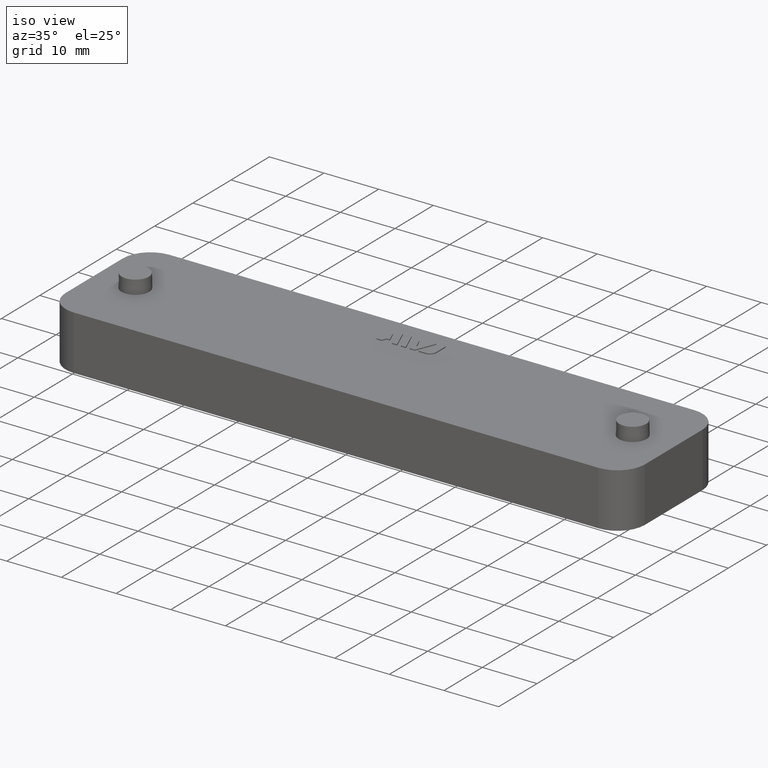
[diagram: clean part render]
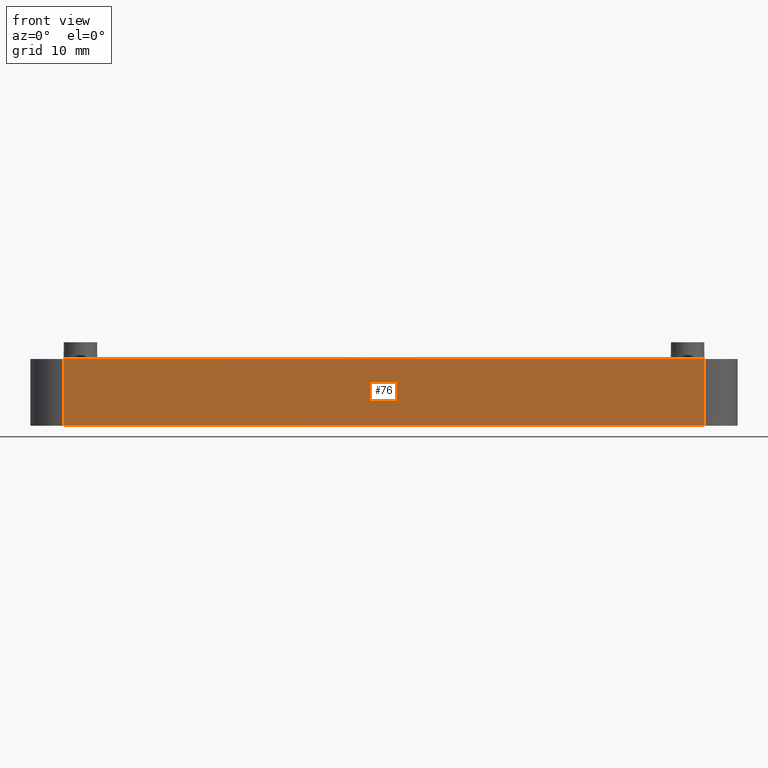
[diagram: tour spotlight — one face highlighted and labeled with its STEP entity id]
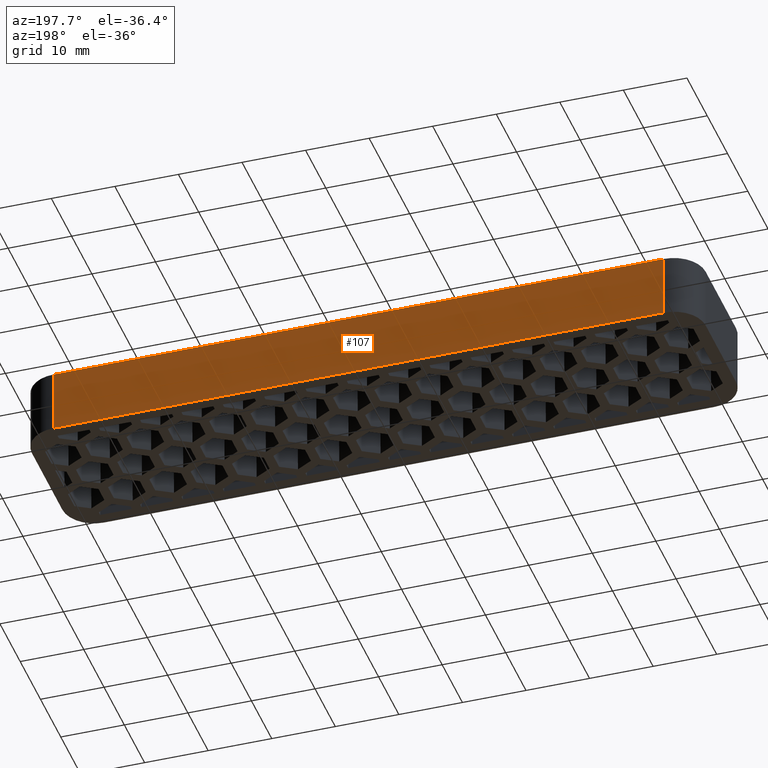
[diagram: tour spotlight — one face highlighted and labeled with its STEP entity id]
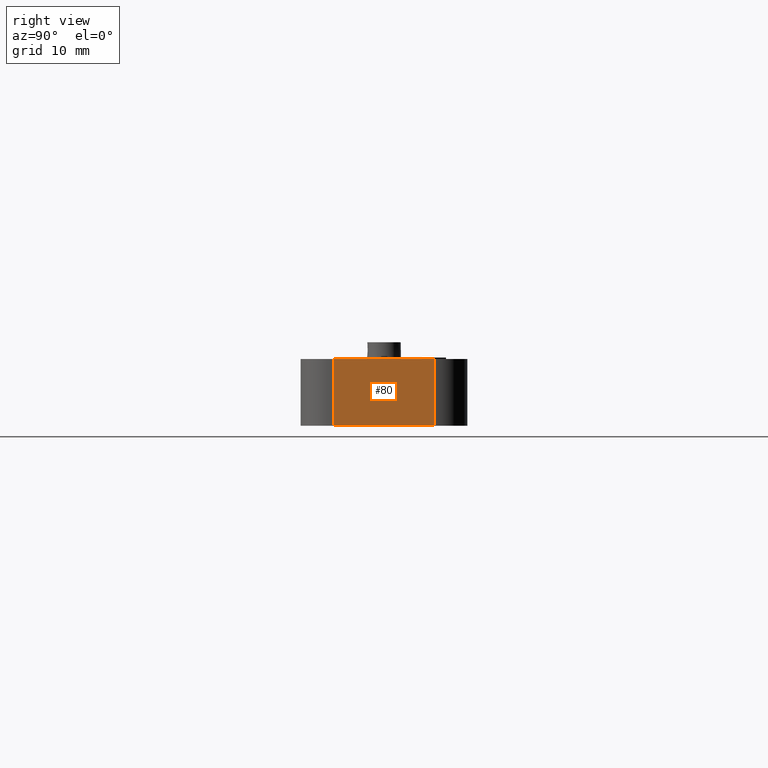
[diagram: tour spotlight — one face highlighted and labeled with its STEP entity id]
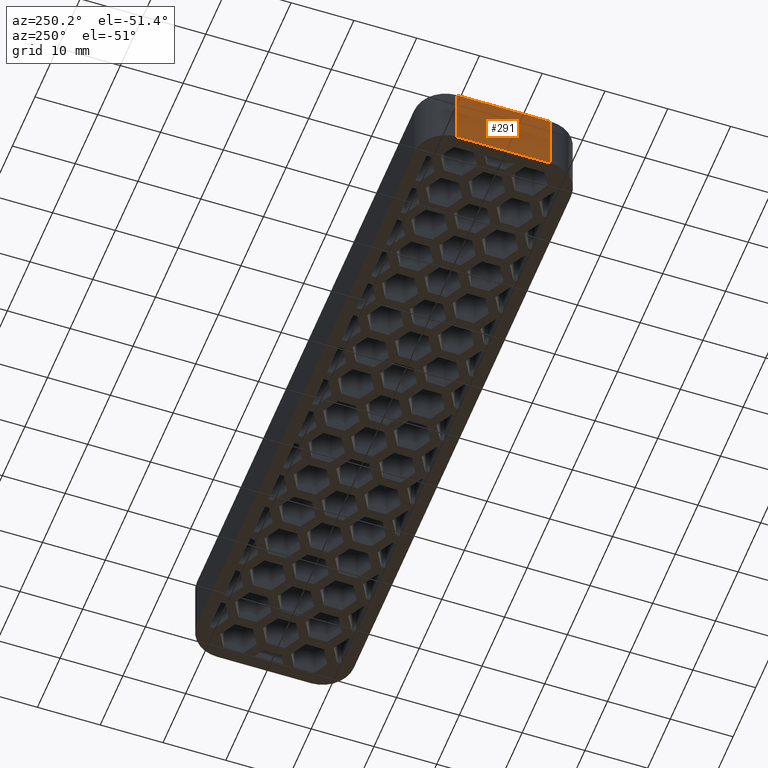
[diagram: tour spotlight — one face highlighted and labeled with its STEP entity id]
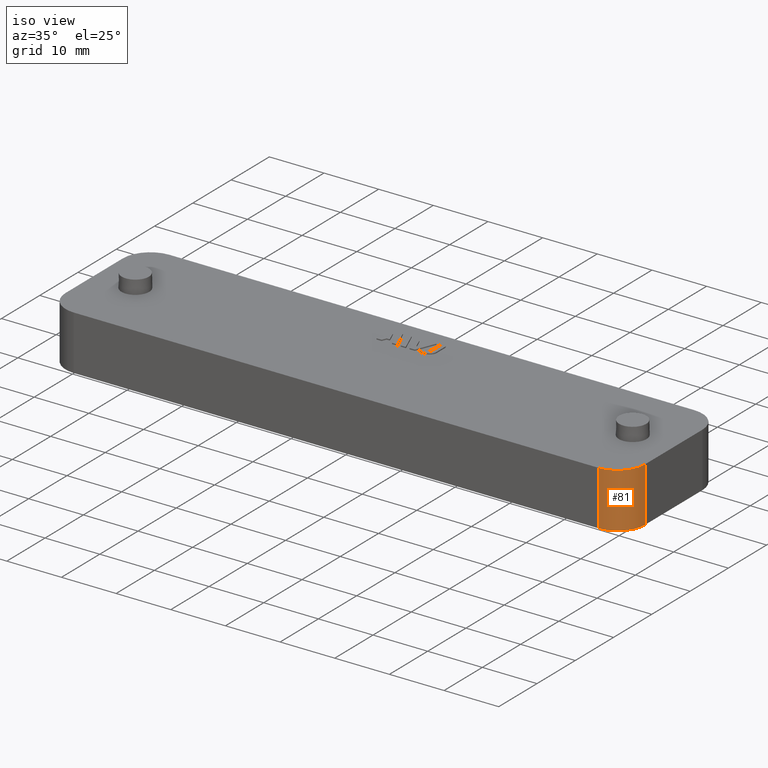
[diagram: tour spotlight — one face highlighted and labeled with its STEP entity id]
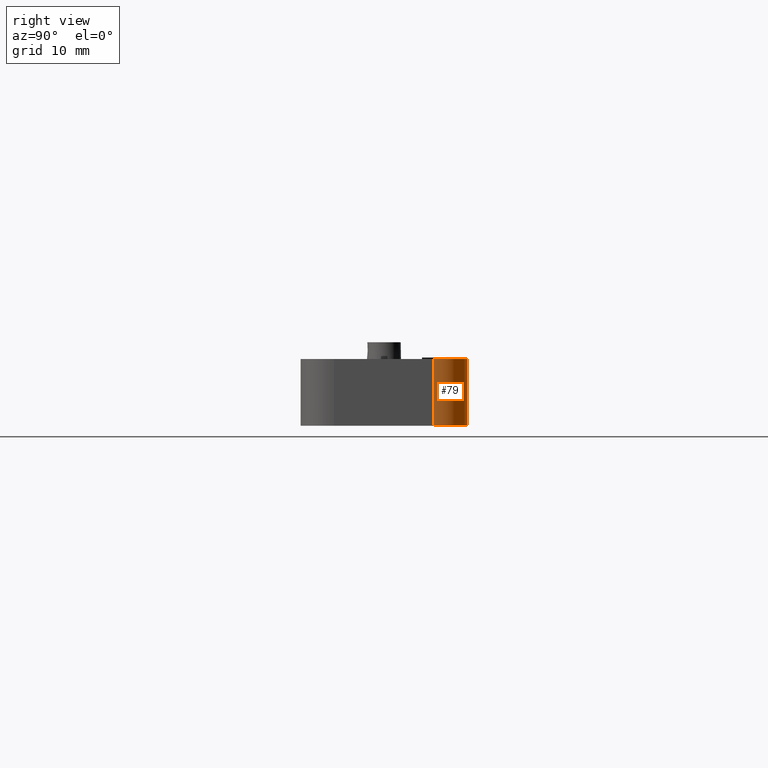
[diagram: tour spotlight — one face highlighted and labeled with its STEP entity id]
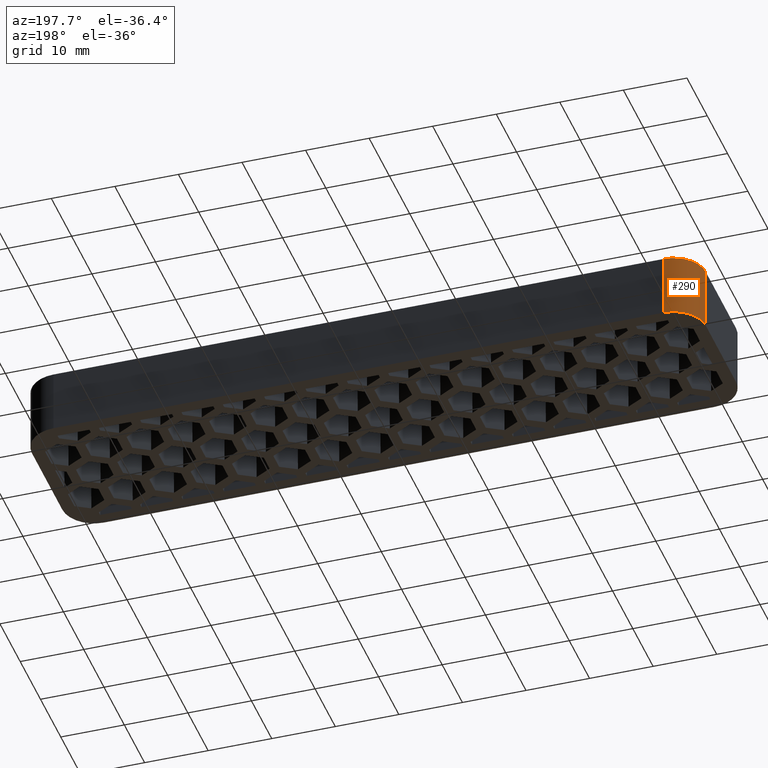
[diagram: tour spotlight — one face highlighted and labeled with its STEP entity id]
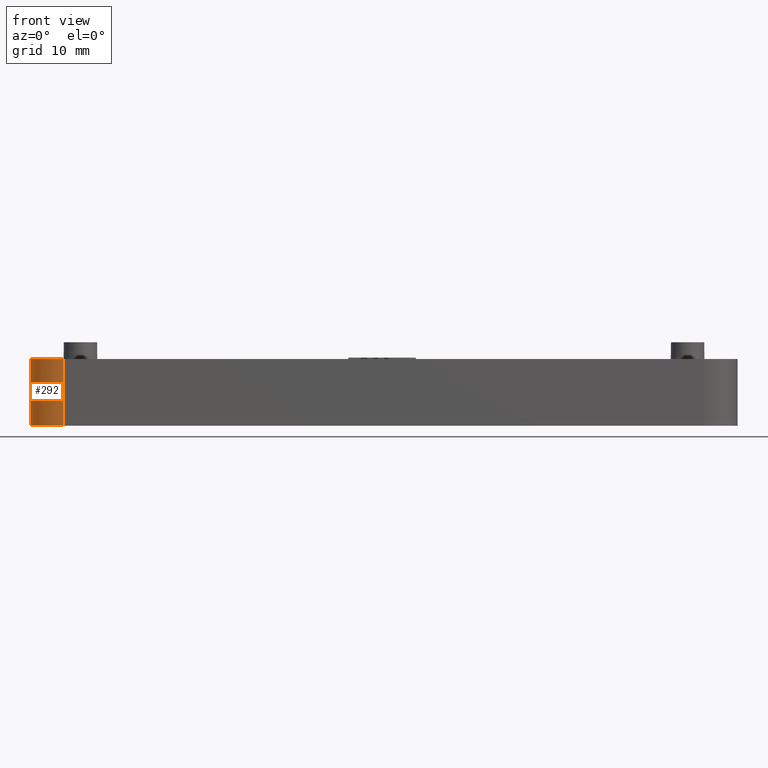
[diagram: tour spotlight — one face highlighted and labeled with its STEP entity id]
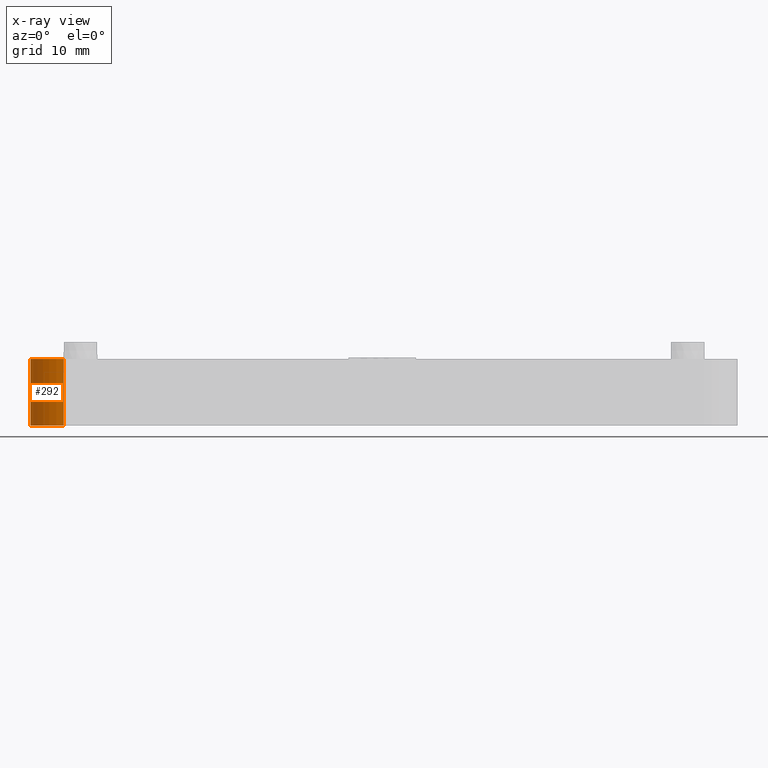
[diagram: x-ray of the same camera — body ghosted, this tour face saturated]
A machine part: a face-by-face anatomy tour. The part has 566 B-rep faces; the first image is the clean iso view, then the 8 largest visible faces are spotlighted one at a time (largest first), each with its STEP entity span.

Face 1 — front view, entity #76. In plain terms, the highlighted planar face has unit normal (0, 1, -0).
Definition (entity closure, byte-faithful):
#76 = ADVANCED_FACE( '', ( #651 ), #652, .F. );
#651 = FACE_OUTER_BOUND( '', #1871, .T. );
#652 = PLANE( '', #1872 );
#1871 = EDGE_LOOP( '', ( #3123, #3124, #3125, #3126 ) );
#1872 = AXIS2_PLACEMENT_3D( '', #3127, #3128, #3129 );
#3123 = ORIENTED_EDGE( '', *, *, #7682, .F. );
#3124 = ORIENTED_EDGE( '', *, *, #7683, .T. );
#3125 = ORIENTED_EDGE( '', *, *, #7662, .T. );
#3126 = ORIENTED_EDGE( '', *, *, #7684, .T. );
#3127 = CARTESIAN_POINT( '', ( 65.5000000000001, -12.5000000000000, -1.31124088366755E-014 ) );
#3128 = DIRECTION( '', ( 0.000000000000000, 1.00000000000000, -6.12303176911189E-017 ) );
#3129 = DIRECTION( '', ( 1.00000000000000, 0.000000000000000, 0.000000000000000 ) );
#7662 = EDGE_CURVE( '', #9099, #9111, #9113, .T. );
#7682 = EDGE_CURVE( '', #9152, #9153, #9154, .T. );
#7683 = EDGE_CURVE( '', #9152, #9099, #9155, .T. );
#7684 = EDGE_CURVE( '', #9111, #9153, #9156, .T. );
#9099 = VERTEX_POINT( '', #11498 );
#9111 = VERTEX_POINT( '', #11513 );
#9113 = LINE( '', #11515, #11516 );
#9152 = VERTEX_POINT( '', #11570 );
#9153 = VERTEX_POINT( '', #11571 );
#9154 = LINE( '', #11572, #11573 );
#9155 = LINE( '', #11574, #11575 );
#9156 = LINE( '', #11576, #11577 );
#11498 = CARTESIAN_POINT( '', ( 48.0000000000000, -12.5000000000000, 9.99999999999998 ) );
#11513 = CARTESIAN_POINT( '', ( -48.0000000000000, -12.5000000000000, 9.99999999999998 ) );
#11515 = CARTESIAN_POINT( '', ( 65.5000000000001, -12.5000000000000, 9.99999999999998 ) );
#11516 = VECTOR( '', #15294, 1000.00000000000 );
#11570 = CARTESIAN_POINT( '', ( 48.0000000000000, -12.5000000000000, -6.86235600679333E-014 ) );
#11571 = CARTESIAN_POINT( '', ( -48.0000000000000, -12.5000000000000, -1.31124088366755E-014 ) );
#11572 = CARTESIAN_POINT( '', ( 65.5000000000001, -12.5000000000000, -1.31124088366755E-014 ) );
#11573 = VECTOR( '', #15322, 1000.00000000000 );
#11574 = CARTESIAN_POINT( '', ( 48.0000000000000, -12.5000000000000, -89.5929851200561 ) );
#11575 = VECTOR( '', #15323, 1000.00000000000 );
#11576 = CARTESIAN_POINT( '', ( -48.0000000000000, -12.4999999999999, 115.587533297270 ) );
#11577 = VECTOR( '', #15324, 1000.00000000000 );
#15294 = DIRECTION( '', ( -1.00000000000000, 0.000000000000000, 0.000000000000000 ) );
#15322 = DIRECTION( '', ( -1.00000000000000, 0.000000000000000, 0.000000000000000 ) );
#15323 = DIRECTION( '', ( 1.60751816480225E-016, 1.81794180051289E-016, 1.00000000000000 ) );
#15324 = DIRECTION( '', ( 1.60751816480226E-016, -1.81794180051289E-016, -1.00000000000000 ) );

Face 2 — auxiliary view, entity #107. In plain terms, the highlighted planar face has unit normal (0, -1, 0).
Definition (entity closure, byte-faithful):
#107 = ADVANCED_FACE( '', ( #792 ), #793, .F. );
#792 = FACE_OUTER_BOUND( '', #2012, .T. );
#793 = PLANE( '', #2013 );
#2012 = EDGE_LOOP( '', ( #3792, #3793, #3794, #3795 ) );
#2013 = AXIS2_PLACEMENT_3D( '', #3796, #3797, #3798 );
#3792 = ORIENTED_EDGE( '', *, *, #7691, .F. );
#3793 = ORIENTED_EDGE( '', *, *, #8139, .F. );
#3794 = ORIENTED_EDGE( '', *, *, #8196, .F. );
#3795 = ORIENTED_EDGE( '', *, *, #7658, .T. );
#3796 = CARTESIAN_POINT( '', ( -65.4999999999999, 12.5000000000000, -1.46431667789534E-014 ) );
#3797 = DIRECTION( '', ( 2.46519032881566E-032, -1.00000000000000, 6.12303176911189E-017 ) );
#3798 = DIRECTION( '', ( -1.00000000000000, -2.46519032881566E-032, 1.50944387002457E-048 ) );
#7658 = EDGE_CURVE( '', #9105, #9103, #9106, .T. );
#7691 = EDGE_CURVE( '', #9165, #9103, #9168, .T. );
#8139 = EDGE_CURVE( '', #10058, #9165, #10060, .T. );
#8196 = EDGE_CURVE( '', #9105, #10058, #10150, .T. );
#9103 = VERTEX_POINT( '', #11503 );
#9105 = VERTEX_POINT( '', #11505 );
#9106 = LINE( '', #11506, #11507 );
#9165 = VERTEX_POINT( '', #11591 );
#9168 = LINE( '', #11594, #11595 );
#10058 = VERTEX_POINT( '', #12929 );
#10060 = LINE( '', #12931, #12932 );
#10150 = LINE( '', #13076, #13077 );
#11503 = CARTESIAN_POINT( '', ( 48.0000000000000, 12.5000000000000, 9.99999999999995 ) );
#11505 = CARTESIAN_POINT( '', ( -48.0000000000000, 12.5000000000000, 9.99999999999998 ) );
#11506 = CARTESIAN_POINT( '', ( -65.4999999999999, 12.5000000000000, 9.99999999999998 ) );
#11507 = VECTOR( '', #15286, 1000.00000000000 );
#11591 = CARTESIAN_POINT( '', ( 48.0000000000000, 12.5000000000000, -4.23987423945824E-014 ) );
#11594 = CARTESIAN_POINT( '', ( 48.0000000000000, 12.5000000000000, -89.5929851200561 ) );
#11595 = VECTOR( '', #15333, 1000.00000000000 );
#12929 = CARTESIAN_POINT( '', ( -48.0000000000000, 12.5000000000000, -1.46431667789534E-014 ) );
#12931 = CARTESIAN_POINT( '', ( -65.4999999999999, 12.5000000000000, -1.46431667789534E-014 ) );
#12932 = VECTOR( '', #15787, 1000.00000000000 );
#13076 = CARTESIAN_POINT( '', ( -48.0000000000000, 12.5000000000000, 115.587533297270 ) );
#13077 = VECTOR( '', #15848, 1000.00000000000 );
#15286 = DIRECTION( '', ( 1.00000000000000, 2.46519032881566E-032, -1.50944387002457E-048 ) );
#15333 = DIRECTION( '', ( 1.60751816480225E-016, 1.81794180051289E-016, 1.00000000000000 ) );
#15787 = DIRECTION( '', ( 1.00000000000000, 2.46519032881566E-032, -1.50944387002457E-048 ) );
#15848 = DIRECTION( '', ( 1.60751816480226E-016, -1.81794180051289E-016, -1.00000000000000 ) );

Face 3 — right view, entity #80. In plain terms, the highlighted planar face has unit normal (1, 0, -0).
Definition (entity closure, byte-faithful):
#80 = ADVANCED_FACE( '', ( #659 ), #660, .T. );
#659 = FACE_OUTER_BOUND( '', #1879, .T. );
#660 = PLANE( '', #1880 );
#1879 = EDGE_LOOP( '', ( #3151, #3152, #3153, #3154 ) );
#1880 = AXIS2_PLACEMENT_3D( '', #3155, #3156, #3157 );
#3151 = ORIENTED_EDGE( '', *, *, #7693, .F. );
#3152 = ORIENTED_EDGE( '', *, *, #7692, .T. );
#3153 = ORIENTED_EDGE( '', *, *, #7656, .T. );
#3154 = ORIENTED_EDGE( '', *, *, #7694, .F. );
#3155 = CARTESIAN_POINT( '', ( 53.0000000000000, -7.50000000000000, -89.5929851200561 ) );
#3156 = DIRECTION( '', ( 1.00000000000000, 7.79018020428502E-031, -1.60751816480225E-016 ) );
#3157 = DIRECTION( '', ( -8.08241765097280E-031, 1.00000000000000, -1.81794180051289E-016 ) );
#7656 = EDGE_CURVE( '', #9101, #9098, #9102, .T. );
#7692 = EDGE_CURVE( '', #9166, #9101, #9169, .T. );
#7693 = EDGE_CURVE( '', #9166, #9170, #9171, .T. );
#7694 = EDGE_CURVE( '', #9170, #9098, #9172, .T. );
#9098 = VERTEX_POINT( '', #11497 );
#9101 = VERTEX_POINT( '', #11500 );
#9102 = LINE( '', #11501, #11502 );
#9166 = VERTEX_POINT( '', #11592 );
#9169 = LINE( '', #11596, #11597 );
#9170 = VERTEX_POINT( '', #11598 );
#9171 = LINE( '', #11599, #11600 );
#9172 = LINE( '', #11601, #11602 );
#11497 = CARTESIAN_POINT( '', ( 53.0000000000000, -7.49999999999999, 9.99999999999995 ) );
#11500 = CARTESIAN_POINT( '', ( 53.0000000000000, 7.50000000000002, 9.99999999999995 ) );
#11501 = CARTESIAN_POINT( '', ( 53.0000000000000, -7.75475603870267E-016, 9.99999999999998 ) );
#11502 = VECTOR( '', #15282, 1000.00000000000 );
#11592 = CARTESIAN_POINT( '', ( 53.0000000000000, 7.50000000000002, -5.59703786139412E-014 ) );
#11596 = CARTESIAN_POINT( '', ( 53.0000000000000, 7.50000000000000, -89.5929851200561 ) );
#11597 = VECTOR( '', #15334, 1000.00000000000 );
#11598 = CARTESIAN_POINT( '', ( 53.0000000000000, -7.50000000000000, -4.11741360407600E-014 ) );
#11599 = CARTESIAN_POINT( '', ( 53.0000000000000, -1.38777878078146E-015, -1.38777878078145E-014 ) );
#11600 = VECTOR( '', #15335, 1000.00000000000 );
#11601 = CARTESIAN_POINT( '', ( 53.0000000000000, -7.50000000000001, -89.5929851200561 ) );
#11602 = VECTOR( '', #15336, 1000.00000000000 );
#15282 = DIRECTION( '', ( 7.88860905221012E-031, -1.00000000000000, 6.12303176911189E-017 ) );
#15334 = DIRECTION( '', ( 1.60751816480225E-016, 1.81794180051289E-016, 1.00000000000000 ) );
#15335 = DIRECTION( '', ( 7.88860905221012E-031, -1.00000000000000, 6.12303176911189E-017 ) );
#15336 = DIRECTION( '', ( 1.60751816480225E-016, 1.81794180051289E-016, 1.00000000000000 ) );

Face 4 — auxiliary view, entity #291. In plain terms, the highlighted planar face has unit normal (-1, -0, -0).
Definition (entity closure, byte-faithful):
#291 = ADVANCED_FACE( '', ( #1162 ), #1163, .T. );
#1162 = FACE_OUTER_BOUND( '', #2382, .T. );
#1163 = PLANE( '', #2383 );
#2382 = EDGE_LOOP( '', ( #5194, #5195, #5196, #5197 ) );
#2383 = AXIS2_PLACEMENT_3D( '', #5198, #5199, #5200 );
#5194 = ORIENTED_EDGE( '', *, *, #8137, .F. );
#5195 = ORIENTED_EDGE( '', *, *, #8795, .F. );
#5196 = ORIENTED_EDGE( '', *, *, #7660, .T. );
#5197 = ORIENTED_EDGE( '', *, *, #8794, .T. );
#5198 = CARTESIAN_POINT( '', ( -53.0000000000000, -7.50000000000000, 115.587533297270 ) );
#5199 = DIRECTION( '', ( -1.00000000000000, -3.93715391700347E-032, -1.60751816480226E-016 ) );
#5200 = DIRECTION( '', ( -1.01477945012568E-032, 1.00000000000000, -1.81794180051289E-016 ) );
#7660 = EDGE_CURVE( '', #9109, #9107, #9110, .T. );
#8137 = EDGE_CURVE( '', #10054, #10056, #10057, .T. );
#8794 = EDGE_CURVE( '', #9107, #10056, #11182, .T. );
#8795 = EDGE_CURVE( '', #9109, #10054, #11183, .T. );
#9107 = VERTEX_POINT( '', #11508 );
#9109 = VERTEX_POINT( '', #11510 );
#9110 = LINE( '', #11511, #11512 );
#10054 = VERTEX_POINT( '', #12924 );
#10056 = VERTEX_POINT( '', #12926 );
#10057 = LINE( '', #12927, #12928 );
#11182 = LINE( '', #14704, #14705 );
#11183 = LINE( '', #14706, #14707 );
#11508 = CARTESIAN_POINT( '', ( -53.0000000000000, 7.50000000000001, 9.99999999999998 ) );
#11510 = CARTESIAN_POINT( '', ( -53.0000000000000, -7.50000000000001, 9.99999999999998 ) );
#11511 = CARTESIAN_POINT( '', ( -53.0000000000000, -7.75475603870261E-016, 9.99999999999998 ) );
#11512 = VECTOR( '', #15290, 1000.00000000000 );
#12924 = CARTESIAN_POINT( '', ( -53.0000000000000, -7.50000000000001, -1.34185604251311E-014 ) );
#12926 = CARTESIAN_POINT( '', ( -53.0000000000000, 7.50000000000001, -1.43370151904978E-014 ) );
#12927 = CARTESIAN_POINT( '', ( -53.0000000000000, -1.38777878078145E-015, -1.38777878078145E-014 ) );
#12928 = VECTOR( '', #15783, 1000.00000000000 );
#14704 = CARTESIAN_POINT( '', ( -53.0000000000000, 7.50000000000001, 115.587533297270 ) );
#14705 = VECTOR( '', #16450, 1000.00000000000 );
#14706 = CARTESIAN_POINT( '', ( -53.0000000000000, -7.50000000000000, 115.587533297270 ) );
#14707 = VECTOR( '', #16451, 1000.00000000000 );
#15290 = DIRECTION( '', ( -2.95286543775261E-032, 1.00000000000000, -6.12303176911189E-017 ) );
#15783 = DIRECTION( '', ( -2.95286543775261E-032, 1.00000000000000, -6.12303176911189E-017 ) );
#16450 = DIRECTION( '', ( 1.60751816480226E-016, -1.81794180051289E-016, -1.00000000000000 ) );
#16451 = DIRECTION( '', ( 1.60751816480226E-016, -1.81794180051289E-016, -1.00000000000000 ) );

Face 5 — iso view, entity #81. In plain terms, the highlighted cylindrical surface (edge-blend (fillet) strip) has radius 5 mm, axis along (-0, -0, -1).
Definition (entity closure, byte-faithful):
#81 = ADVANCED_FACE( '', ( #661 ), #662, .T. );
#661 = FACE_OUTER_BOUND( '', #1881, .T. );
#662 = CYLINDRICAL_SURFACE( '', #1882, 4.99999999999999 );
#1881 = EDGE_LOOP( '', ( #3158, #3159, #3160, #3161 ) );
#1882 = AXIS2_PLACEMENT_3D( '', #3162, #3163, #3164 );
#3158 = ORIENTED_EDGE( '', *, *, #7695, .F. );
#3159 = ORIENTED_EDGE( '', *, *, #7694, .T. );
#3160 = ORIENTED_EDGE( '', *, *, #7655, .T. );
#3161 = ORIENTED_EDGE( '', *, *, #7683, .F. );
#3162 = CARTESIAN_POINT( '', ( 48.0000000000000, -7.50000000000001, -89.5929851200561 ) );
#3163 = DIRECTION( '', ( -1.60751816480225E-016, -1.81794180051289E-016, -1.00000000000000 ) );
#3164 = DIRECTION( '', ( 1.00000000000000, -5.55111512312578E-015, -1.60751816480224E-016 ) );
#7655 = EDGE_CURVE( '', #9098, #9099, #9100, .T. );
#7683 = EDGE_CURVE( '', #9152, #9099, #9155, .T. );
#7694 = EDGE_CURVE( '', #9170, #9098, #9172, .T. );
#7695 = EDGE_CURVE( '', #9170, #9152, #9173, .T. );
#9098 = VERTEX_POINT( '', #11497 );
#9099 = VERTEX_POINT( '', #11498 );
#9100 = CIRCLE( '', #11499, 4.99999999999999 );
#9152 = VERTEX_POINT( '', #11570 );
#9155 = LINE( '', #11574, #11575 );
#9170 = VERTEX_POINT( '', #11598 );
#9172 = LINE( '', #11601, #11602 );
#9173 = CIRCLE( '', #11603, 4.99999999999999 );
#11497 = CARTESIAN_POINT( '', ( 53.0000000000000, -7.49999999999999, 9.99999999999995 ) );
#11498 = CARTESIAN_POINT( '', ( 48.0000000000000, -12.5000000000000, 9.99999999999998 ) );
#11499 = AXIS2_PLACEMENT_3D( '', #15279, #15280, #15281 );
#11570 = CARTESIAN_POINT( '', ( 48.0000000000000, -12.5000000000000, -6.86235600679333E-014 ) );
#11574 = CARTESIAN_POINT( '', ( 48.0000000000000, -12.5000000000000, -89.5929851200561 ) );
#11575 = VECTOR( '', #15323, 1000.00000000000 );
#11598 = CARTESIAN_POINT( '', ( 53.0000000000000, -7.50000000000000, -4.11741360407600E-014 ) );
#11601 = CARTESIAN_POINT( '', ( 53.0000000000000, -7.50000000000001, -89.5929851200561 ) );
#11602 = VECTOR( '', #15336, 1000.00000000000 );
#11603 = AXIS2_PLACEMENT_3D( '', #15337, #15338, #15339 );
#15279 = CARTESIAN_POINT( '', ( 48.0000000000000, -7.49999999999999, 9.99999999999998 ) );
#15280 = DIRECTION( '', ( 0.000000000000000, -6.12303176911189E-017, -1.00000000000000 ) );
#15281 = DIRECTION( '', ( 0.000000000000000, 1.00000000000000, -6.12303176911189E-017 ) );
#15323 = DIRECTION( '', ( 1.60751816480225E-016, 1.81794180051289E-016, 1.00000000000000 ) );
#15336 = DIRECTION( '', ( 1.60751816480225E-016, 1.81794180051289E-016, 1.00000000000000 ) );
#15337 = CARTESIAN_POINT( '', ( 48.0000000000000, -7.50000000000000, -2.72963482329455E-014 ) );
#15338 = DIRECTION( '', ( 0.000000000000000, -6.12303176911189E-017, -1.00000000000000 ) );
#15339 = DIRECTION( '', ( 0.000000000000000, 1.00000000000000, -6.12303176911189E-017 ) );

Face 6 — right view, entity #79. In plain terms, the highlighted cylindrical surface (edge-blend (fillet) strip) has radius 5 mm, axis along (-0, -0, -1).
Definition (entity closure, byte-faithful):
#79 = ADVANCED_FACE( '', ( #657 ), #658, .T. );
#657 = FACE_OUTER_BOUND( '', #1877, .T. );
#658 = CYLINDRICAL_SURFACE( '', #1878, 5.00000000000000 );
#1877 = EDGE_LOOP( '', ( #3144, #3145, #3146, #3147 ) );
#1878 = AXIS2_PLACEMENT_3D( '', #3148, #3149, #3150 );
#3144 = ORIENTED_EDGE( '', *, *, #7690, .F. );
#3145 = ORIENTED_EDGE( '', *, *, #7691, .T. );
#3146 = ORIENTED_EDGE( '', *, *, #7657, .T. );
#3147 = ORIENTED_EDGE( '', *, *, #7692, .F. );
#3148 = CARTESIAN_POINT( '', ( 48.0000000000000, 7.50000000000000, -89.5929851200561 ) );
#3149 = DIRECTION( '', ( -1.60751816480225E-016, -1.81794180051289E-016, -1.00000000000000 ) );
#3150 = DIRECTION( '', ( 1.00000000000000, -5.55111512312578E-015, -1.60751816480224E-016 ) );
#7657 = EDGE_CURVE( '', #9103, #9101, #9104, .T. );
#7690 = EDGE_CURVE( '', #9165, #9166, #9167, .T. );
#7691 = EDGE_CURVE( '', #9165, #9103, #9168, .T. );
#7692 = EDGE_CURVE( '', #9166, #9101, #9169, .T. );
#9101 = VERTEX_POINT( '', #11500 );
#9103 = VERTEX_POINT( '', #11503 );
#9104 = CIRCLE( '', #11504, 5.00000000000000 );
#9165 = VERTEX_POINT( '', #11591 );
#9166 = VERTEX_POINT( '', #11592 );
#9167 = CIRCLE( '', #11593, 5.00000000000000 );
#9168 = LINE( '', #11594, #11595 );
#9169 = LINE( '', #11596, #11597 );
#11500 = CARTESIAN_POINT( '', ( 53.0000000000000, 7.50000000000002, 9.99999999999995 ) );
#11503 = CARTESIAN_POINT( '', ( 48.0000000000000, 12.5000000000000, 9.99999999999995 ) );
#11504 = AXIS2_PLACEMENT_3D( '', #15283, #15284, #15285 );
#11591 = CARTESIAN_POINT( '', ( 48.0000000000000, 12.5000000000000, -4.23987423945824E-014 ) );
#11592 = CARTESIAN_POINT( '', ( 53.0000000000000, 7.50000000000002, -5.59703786139412E-014 ) );
#11593 = AXIS2_PLACEMENT_3D( '', #15330, #15331, #15332 );
#11594 = CARTESIAN_POINT( '', ( 48.0000000000000, 12.5000000000000, -89.5929851200561 ) );
#11595 = VECTOR( '', #15333, 1000.00000000000 );
#11596 = CARTESIAN_POINT( '', ( 53.0000000000000, 7.50000000000000, -89.5929851200561 ) );
#11597 = VECTOR( '', #15334, 1000.00000000000 );
#15283 = CARTESIAN_POINT( '', ( 48.0000000000000, 7.50000000000002, 9.99999999999998 ) );
#15284 = DIRECTION( '', ( 0.000000000000000, -6.12303176911189E-017, -1.00000000000000 ) );
#15285 = DIRECTION( '', ( 0.000000000000000, 1.00000000000000, -6.12303176911189E-017 ) );
#15330 = CARTESIAN_POINT( '', ( 48.0000000000000, 7.50000000000002, -2.82148029983123E-014 ) );
#15331 = DIRECTION( '', ( 0.000000000000000, -6.12303176911189E-017, -1.00000000000000 ) );
#15332 = DIRECTION( '', ( 0.000000000000000, 1.00000000000000, -6.12303176911189E-017 ) );
#15333 = DIRECTION( '', ( 1.60751816480225E-016, 1.81794180051289E-016, 1.00000000000000 ) );
#15334 = DIRECTION( '', ( 1.60751816480225E-016, 1.81794180051289E-016, 1.00000000000000 ) );

Face 7 — auxiliary view, entity #290. In plain terms, the highlighted cylindrical surface (edge-blend (fillet) strip) has radius 5 mm, axis along (-0, 0, 1).
Definition (entity closure, byte-faithful):
#290 = ADVANCED_FACE( '', ( #1160 ), #1161, .T. );
#1160 = FACE_OUTER_BOUND( '', #2380, .T. );
#1161 = CYLINDRICAL_SURFACE( '', #2381, 5.00000000000000 );
#2380 = EDGE_LOOP( '', ( #5187, #5188, #5189, #5190 ) );
#2381 = AXIS2_PLACEMENT_3D( '', #5191, #5192, #5193 );
#5187 = ORIENTED_EDGE( '', *, *, #8138, .F. );
#5188 = ORIENTED_EDGE( '', *, *, #8794, .F. );
#5189 = ORIENTED_EDGE( '', *, *, #7659, .T. );
#5190 = ORIENTED_EDGE( '', *, *, #8196, .T. );
#5191 = CARTESIAN_POINT( '', ( -48.0000000000000, 7.50000000000001, 115.587533297270 ) );
#5192 = DIRECTION( '', ( -1.60751816480226E-016, 1.81794180051289E-016, 1.00000000000000 ) );
#5193 = DIRECTION( '', ( -1.00000000000000, -5.90573087550521E-032, -1.60751816480226E-016 ) );
#7659 = EDGE_CURVE( '', #9107, #9105, #9108, .T. );
#8138 = EDGE_CURVE( '', #10056, #10058, #10059, .T. );
#8196 = EDGE_CURVE( '', #9105, #10058, #10150, .T. );
#8794 = EDGE_CURVE( '', #9107, #10056, #11182, .T. );
#9105 = VERTEX_POINT( '', #11505 );
#9107 = VERTEX_POINT( '', #11508 );
#9108 = CIRCLE( '', #11509, 5.00000000000000 );
#10056 = VERTEX_POINT( '', #12926 );
#10058 = VERTEX_POINT( '', #12929 );
#10059 = CIRCLE( '', #12930, 5.00000000000000 );
#10150 = LINE( '', #13076, #13077 );
#11182 = LINE( '', #14704, #14705 );
#11505 = CARTESIAN_POINT( '', ( -48.0000000000000, 12.5000000000000, 9.99999999999998 ) );
#11508 = CARTESIAN_POINT( '', ( -53.0000000000000, 7.50000000000001, 9.99999999999998 ) );
#11509 = AXIS2_PLACEMENT_3D( '', #15287, #15288, #15289 );
#12926 = CARTESIAN_POINT( '', ( -53.0000000000000, 7.50000000000001, -1.43370151904978E-014 ) );
#12929 = CARTESIAN_POINT( '', ( -48.0000000000000, 12.5000000000000, -1.46431667789534E-014 ) );
#12930 = AXIS2_PLACEMENT_3D( '', #15784, #15785, #15786 );
#13076 = CARTESIAN_POINT( '', ( -48.0000000000000, 12.5000000000000, 115.587533297270 ) );
#13077 = VECTOR( '', #15848, 1000.00000000000 );
#14704 = CARTESIAN_POINT( '', ( -53.0000000000000, 7.50000000000001, 115.587533297270 ) );
#14705 = VECTOR( '', #16450, 1000.00000000000 );
#15287 = CARTESIAN_POINT( '', ( -48.0000000000000, 7.49999999999999, 9.99999999999998 ) );
#15288 = DIRECTION( '', ( 0.000000000000000, -6.12303176911189E-017, -1.00000000000000 ) );
#15289 = DIRECTION( '', ( 0.000000000000000, 1.00000000000000, -6.12303176911189E-017 ) );
#15784 = CARTESIAN_POINT( '', ( -48.0000000000000, 7.49999999999999, -1.43370151904978E-014 ) );
#15785 = DIRECTION( '', ( 0.000000000000000, -6.12303176911189E-017, -1.00000000000000 ) );
#15786 = DIRECTION( '', ( 0.000000000000000, 1.00000000000000, -6.12303176911189E-017 ) );
#15848 = DIRECTION( '', ( 1.60751816480226E-016, -1.81794180051289E-016, -1.00000000000000 ) );
#16450 = DIRECTION( '', ( 1.60751816480226E-016, -1.81794180051289E-016, -1.00000000000000 ) );

Face 8 — front view, entity #292. An x-ray twin of the same camera follows (body ghosted, this face saturated) — the face is partly hidden behind the body. In plain terms, the highlighted cylindrical surface (edge-blend (fillet) strip) has radius 5 mm, axis along (-0, 0, 1).
Definition (entity closure, byte-faithful):
#292 = ADVANCED_FACE( '', ( #1164 ), #1165, .T. );
#1164 = FACE_OUTER_BOUND( '', #2384, .T. );
#1165 = CYLINDRICAL_SURFACE( '', #2385, 5.00000000000000 );
#2384 = EDGE_LOOP( '', ( #5201, #5202, #5203, #5204 ) );
#2385 = AXIS2_PLACEMENT_3D( '', #5205, #5206, #5207 );
#5201 = ORIENTED_EDGE( '', *, *, #8136, .F. );
#5202 = ORIENTED_EDGE( '', *, *, #7684, .F. );
#5203 = ORIENTED_EDGE( '', *, *, #7661, .T. );
#5204 = ORIENTED_EDGE( '', *, *, #8795, .T. );
#5205 = CARTESIAN_POINT( '', ( -48.0000000000000, -7.50000000000000, 115.587533297270 ) );
#5206 = DIRECTION( '', ( -1.60751816480226E-016, 1.81794180051289E-016, 1.00000000000000 ) );
#5207 = DIRECTION( '', ( -1.00000000000000, -5.90573087550521E-032, -1.60751816480226E-016 ) );
#7661 = EDGE_CURVE( '', #9111, #9109, #9112, .T. );
#7684 = EDGE_CURVE( '', #9111, #9153, #9156, .T. );
#8136 = EDGE_CURVE( '', #9153, #10054, #10055, .T. );
#8795 = EDGE_CURVE( '', #9109, #10054, #11183, .T. );
#9109 = VERTEX_POINT( '', #11510 );
#9111 = VERTEX_POINT( '', #11513 );
#9112 = CIRCLE( '', #11514, 5.00000000000000 );
#9153 = VERTEX_POINT( '', #11571 );
#9156 = LINE( '', #11576, #11577 );
#10054 = VERTEX_POINT( '', #12924 );
#10055 = CIRCLE( '', #12925, 5.00000000000000 );
#11183 = LINE( '', #14706, #14707 );
#11510 = CARTESIAN_POINT( '', ( -53.0000000000000, -7.50000000000001, 9.99999999999998 ) );
#11513 = CARTESIAN_POINT( '', ( -48.0000000000000, -12.5000000000000, 9.99999999999998 ) );
#11514 = AXIS2_PLACEMENT_3D( '', #15291, #15292, #15293 );
#11571 = CARTESIAN_POINT( '', ( -48.0000000000000, -12.5000000000000, -1.31124088366755E-014 ) );
#11576 = CARTESIAN_POINT( '', ( -48.0000000000000, -12.4999999999999, 115.587533297270 ) );
#11577 = VECTOR( '', #15324, 1000.00000000000 );
#12924 = CARTESIAN_POINT( '', ( -53.0000000000000, -7.50000000000001, -1.34185604251311E-014 ) );
#12925 = AXIS2_PLACEMENT_3D( '', #15780, #15781, #15782 );
#14706 = CARTESIAN_POINT( '', ( -53.0000000000000, -7.50000000000000, 115.587533297270 ) );
#14707 = VECTOR( '', #16451, 1000.00000000000 );
#15291 = CARTESIAN_POINT( '', ( -48.0000000000000, -7.50000000000002, 9.99999999999998 ) );
#15292 = DIRECTION( '', ( 0.000000000000000, -6.12303176911189E-017, -1.00000000000000 ) );
#15293 = DIRECTION( '', ( 0.000000000000000, 1.00000000000000, -6.12303176911189E-017 ) );
#15324 = DIRECTION( '', ( 1.60751816480226E-016, -1.81794180051289E-016, -1.00000000000000 ) );
#15780 = CARTESIAN_POINT( '', ( -48.0000000000000, -7.50000000000002, -1.34185604251311E-014 ) );
#15781 = DIRECTION( '', ( 0.000000000000000, -6.12303176911189E-017, -1.00000000000000 ) );
#15782 = DIRECTION( '', ( 0.000000000000000, 1.00000000000000, -6.12303176911189E-017 ) );
#16451 = DIRECTION( '', ( 1.60751816480226E-016, -1.81794180051289E-016, -1.00000000000000 ) );